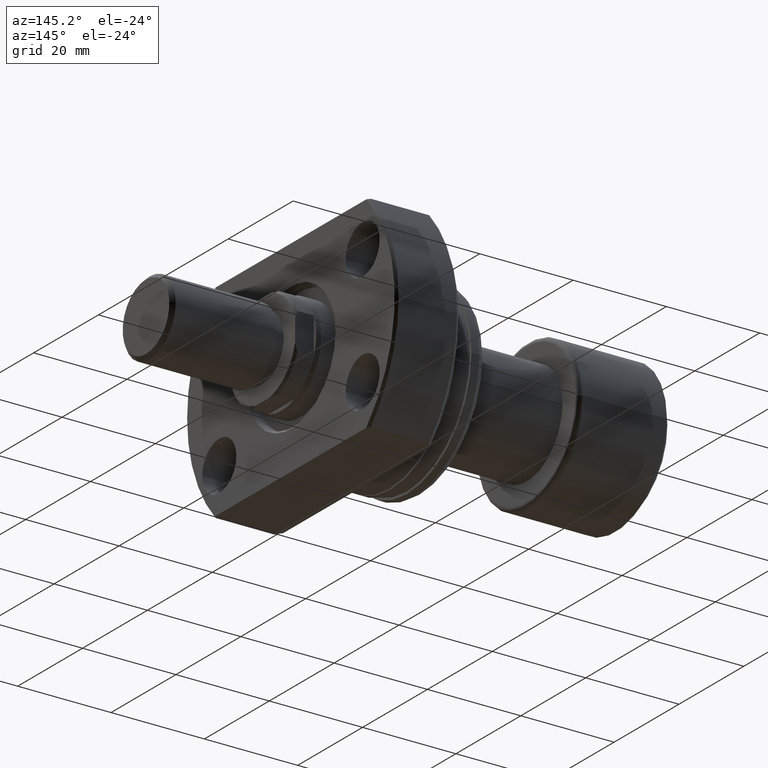
[diagram: clean part render]
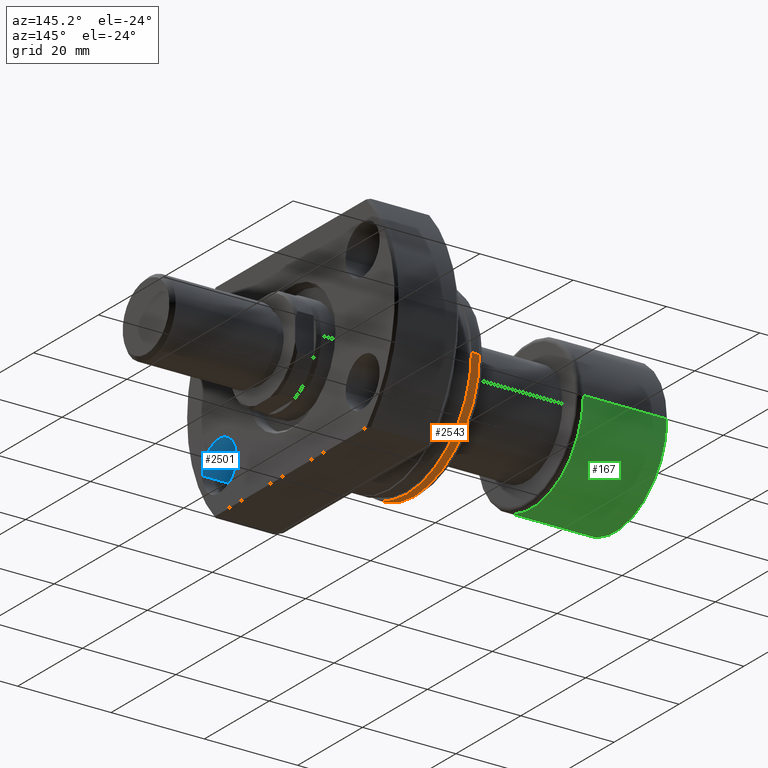
[diagram: same view with three faces highlighted in distinct colors, each labeled with its STEP entity id]
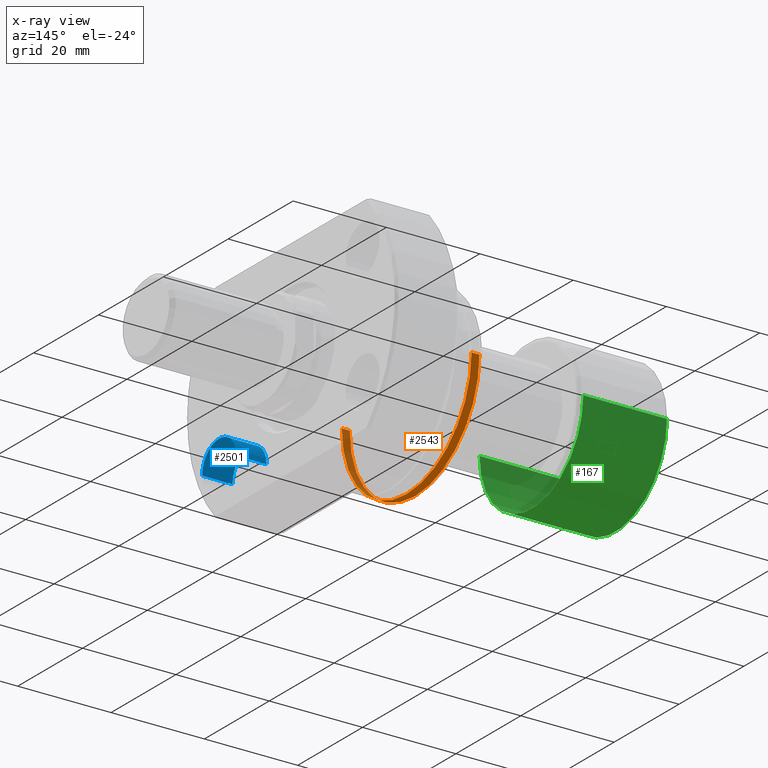
[diagram: x-ray of the same camera — body ghosted, the three highlighted faces saturated]
A machine part, auxiliary view with three faces highlighted in distinct colors.
The next image is the same camera in x-ray (body ghosted, the three faces saturated) — at least one of them is partly hidden behind the body in this view.
Their STEP definitions:

[orange] entity #2543 — the highlighted cylindrical surface (partial cylindrical patch) has radius 20 mm, axis along (1, 0, 0).
#47 = ORIENTED_EDGE ( 'NONE', *, *, #2010, .T. ) ;
#90 = AXIS2_PLACEMENT_3D ( 'NONE', #224, #1372, #2504 ) ;
#217 = CARTESIAN_POINT ( 'NONE',  ( 2.699999999999786127, -19.99999999999999645, 2.449293598294706119E-15 ) ) ;
#224 = CARTESIAN_POINT ( 'NONE',  ( 0.9999999999997857270, 1.335978326342282389E-17, 0.000000000000000000 ) ) ;
#351 = DIRECTION ( 'NONE',  ( 1.000000000000000000, 1.335978326342566810E-17, -0.000000000000000000 ) ) ;
#393 = ORIENTED_EDGE ( 'NONE', *, *, #3477, .F. ) ;
#513 = CARTESIAN_POINT ( 'NONE',  ( 2.699999999999785683, 19.99999999999999645, 0.000000000000000000 ) ) ;
#583 = AXIS2_PLACEMENT_3D ( 'NONE', #2971, #2118, #2085 ) ;
#695 = CYLINDRICAL_SURFACE ( 'NONE', #2287, 19.99999999999999645 ) ;
#739 = CIRCLE ( 'NONE', #90, 19.99999999999999645 ) ;
#795 = VECTOR ( 'NONE', #351, 1000.000000000000000 ) ;
#809 = CIRCLE ( 'NONE', #583, 19.99999999999999645 ) ;
#831 = VERTEX_POINT ( 'NONE', #1108 ) ;
#940 = CARTESIAN_POINT ( 'NONE',  ( 27.50000000000000355, -19.99999999999999645, 2.449293598294706119E-15 ) ) ;
#1108 = CARTESIAN_POINT ( 'NONE',  ( 0.9999999999997856159, 19.99999999999999645, 0.000000000000000000 ) ) ;
#1125 = ORIENTED_EDGE ( 'NONE', *, *, #1838, .T. ) ;
#1372 = DIRECTION ( 'NONE',  ( 1.000000000000000000, 1.335978326342566810E-17, -0.000000000000000000 ) ) ;
#1453 = VERTEX_POINT ( 'NONE', #217 ) ;
#1475 = CARTESIAN_POINT ( 'NONE',  ( 27.50000000000000355, 19.99999999999999645, 0.000000000000000000 ) ) ;
#1838 = EDGE_CURVE ( 'NONE', #2964, #831, #739, .T. ) ;
#2010 = EDGE_CURVE ( 'NONE', #831, #2734, #2322, .T. ) ;
#2085 = DIRECTION ( 'NONE',  ( -2.168404344971009176E-17, 1.000000000000000000, 0.000000000000000000 ) ) ;
#2118 = DIRECTION ( 'NONE',  ( 1.000000000000000000, 1.335978326342566810E-17, -0.000000000000000000 ) ) ;
#2182 = EDGE_LOOP ( 'NONE', ( #2957, #1125, #47, #393 ) ) ;
#2287 = AXIS2_PLACEMENT_3D ( 'NONE', #3555, #2414, #3210 ) ;
#2322 = LINE ( 'NONE', #1475, #795 ) ;
#2408 = CARTESIAN_POINT ( 'NONE',  ( 0.9999999999997859490, -19.99999999999999645, 2.449293598294706119E-15 ) ) ;
#2414 = DIRECTION ( 'NONE',  ( 1.000000000000000000, 1.335978326342566810E-17, -0.000000000000000000 ) ) ;
#2430 = LINE ( 'NONE', #940, #2954 ) ;
#2504 = DIRECTION ( 'NONE',  ( -1.084202172485504588E-17, 1.000000000000000000, 0.000000000000000000 ) ) ;
#2523 = EDGE_CURVE ( 'NONE', #2964, #1453, #2430, .T. ) ;
#2543 = ADVANCED_FACE ( 'NONE', ( #3491 ), #695, .T. ) ;
#2734 = VERTEX_POINT ( 'NONE', #513 ) ;
#2954 = VECTOR ( 'NONE', #3238, 1000.000000000000000 ) ;
#2957 = ORIENTED_EDGE ( 'NONE', *, *, #2523, .F. ) ;
#2964 = VERTEX_POINT ( 'NONE', #2408 ) ;
#2971 = CARTESIAN_POINT ( 'NONE',  ( 2.699999999999786127, 3.607141481124643254E-17, 0.000000000000000000 ) ) ;
#3210 = DIRECTION ( 'NONE',  ( 0.000000000000000000, 1.000000000000000000, 0.000000000000000000 ) ) ;
#3238 = DIRECTION ( 'NONE',  ( 1.000000000000000000, 1.335978326342566810E-17, -0.000000000000000000 ) ) ;
#3477 = EDGE_CURVE ( 'NONE', #1453, #2734, #809, .T. ) ;
#3491 = FACE_OUTER_BOUND ( 'NONE', #2182, .T. ) ;
#3555 = CARTESIAN_POINT ( 'NONE',  ( 27.50000000000000355, 3.673940397442059375E-16, 0.000000000000000000 ) ) ;

[blue] entity #2501 — the highlighted cylindrical surface (edge-blend (fillet) strip) has radius 5.25 mm, axis along (1, -0, 0).
#123 = EDGE_LOOP ( 'NONE', ( #1545, #1884, #2570, #1859 ) ) ;
#131 = CYLINDRICAL_SURFACE ( 'NONE', #2160, 5.250000000000000888 ) ;
#284 = DIRECTION ( 'NONE',  ( 1.000000000000000000, -2.886466111666352516E-14, -0.000000000000000000 ) ) ;
#317 = VERTEX_POINT ( 'NONE', #2265 ) ;
#374 = DIRECTION ( 'NONE',  ( 1.000000000000000000, -2.886466111666352516E-14, -0.000000000000000000 ) ) ;
#375 = AXIS2_PLACEMENT_3D ( 'NONE', #1571, #716, #1257 ) ;
#501 = CARTESIAN_POINT ( 'NONE',  ( 20.99999999999952038, -16.85000000000060538, -12.75000000000000178 ) ) ;
#522 = CARTESIAN_POINT ( 'NONE',  ( 27.49999999999951683, -16.85000000000079012, -12.75000000000000178 ) ) ;
#716 = DIRECTION ( 'NONE',  ( 1.000000000000000000, -2.887798767815668620E-14, -6.310887241768094443E-30 ) ) ;
#931 = EDGE_CURVE ( 'NONE', #3265, #317, #1975, .T. ) ;
#1216 = VERTEX_POINT ( 'NONE', #3397 ) ;
#1257 = DIRECTION ( 'NONE',  ( 2.907726969256361977E-14, 1.000000000000000000, 0.000000000000000000 ) ) ;
#1267 = CARTESIAN_POINT ( 'NONE',  ( 20.99999999999936762, -22.10000000000060538, -12.75000000000000178 ) ) ;
#1366 = DIRECTION ( 'NONE',  ( 2.907726969256361977E-14, 1.000000000000000000, 0.000000000000000000 ) ) ;
#1417 = EDGE_CURVE ( 'NONE', #1216, #1519, #2940, .T. ) ;
#1440 = CARTESIAN_POINT ( 'NONE',  ( 20.99999999999936762, -22.10000000000060538, -12.75000000000000178 ) ) ;
#1519 = VERTEX_POINT ( 'NONE', #2341 ) ;
#1545 = ORIENTED_EDGE ( 'NONE', *, *, #1995, .F. ) ;
#1567 = AXIS2_PLACEMENT_3D ( 'NONE', #1440, #2225, #1366 ) ;
#1571 = CARTESIAN_POINT ( 'NONE',  ( 27.49999999999936406, -22.10000000000079368, -12.75000000000000178 ) ) ;
#1778 = FACE_OUTER_BOUND ( 'NONE', #123, .T. ) ;
#1859 = ORIENTED_EDGE ( 'NONE', *, *, #931, .T. ) ;
#1884 = ORIENTED_EDGE ( 'NONE', *, *, #1417, .F. ) ;
#1905 = LINE ( 'NONE', #501, #3358 ) ;
#1975 = CIRCLE ( 'NONE', #375, 5.250000000000000888 ) ;
#1995 = EDGE_CURVE ( 'NONE', #1519, #317, #3370, .T. ) ;
#2095 = DIRECTION ( 'NONE',  ( 1.000000000000000000, -2.886466111666352516E-14, -0.000000000000000000 ) ) ;
#2160 = AXIS2_PLACEMENT_3D ( 'NONE', #1267, #374, #2698 ) ;
#2223 = VECTOR ( 'NONE', #284, 1000.000000000000000 ) ;
#2225 = DIRECTION ( 'NONE',  ( 1.000000000000000000, -2.887798767815668620E-14, -6.310887241768094443E-30 ) ) ;
#2265 = CARTESIAN_POINT ( 'NONE',  ( 27.49999999999921130, -27.35000000000079368, -12.75000000000000178 ) ) ;
#2341 = CARTESIAN_POINT ( 'NONE',  ( 20.99999999999921485, -27.35000000000060538, -12.75000000000000178 ) ) ;
#2434 = EDGE_CURVE ( 'NONE', #1216, #3265, #1905, .T. ) ;
#2501 = ADVANCED_FACE ( 'NONE', ( #1778 ), #131, .F. ) ;
#2570 = ORIENTED_EDGE ( 'NONE', *, *, #2434, .T. ) ;
#2698 = DIRECTION ( 'NONE',  ( 2.907726969256361977E-14, 1.000000000000000000, 0.000000000000000000 ) ) ;
#2836 = CARTESIAN_POINT ( 'NONE',  ( 20.99999999999921485, -27.35000000000060538, -12.75000000000000178 ) ) ;
#2940 = CIRCLE ( 'NONE', #1567, 5.250000000000000888 ) ;
#3265 = VERTEX_POINT ( 'NONE', #522 ) ;
#3358 = VECTOR ( 'NONE', #2095, 1000.000000000000000 ) ;
#3370 = LINE ( 'NONE', #2836, #2223 ) ;
#3397 = CARTESIAN_POINT ( 'NONE',  ( 20.99999999999952038, -16.85000000000060538, -12.75000000000000178 ) ) ;

[green] entity #167 — the highlighted cylindrical surface (partial cylindrical patch) has radius 16 mm, axis along (-1, -0, -0).
#103 = LINE ( 'NONE', #2379, #3144 ) ;
#167 = ADVANCED_FACE ( 'NONE', ( #172 ), #1315, .T. ) ;
#172 = FACE_OUTER_BOUND ( 'NONE', #458, .T. ) ;
#184 = DIRECTION ( 'NONE',  ( -1.000000000000000000, -1.069542322069065801E-17, -0.000000000000000000 ) ) ;
#187 = CARTESIAN_POINT ( 'NONE',  ( 0.000000000000000000, 0.000000000000000000, 0.000000000000000000 ) ) ;
#188 = VERTEX_POINT ( 'NONE', #1165 ) ;
#197 = CIRCLE ( 'NONE', #1576, 16.00000000000000000 ) ;
#205 = DIRECTION ( 'NONE',  ( 1.355252715606880543E-17, -1.000000000000000000, 0.000000000000000000 ) ) ;
#427 = LINE ( 'NONE', #2667, #3240 ) ;
#458 = EDGE_LOOP ( 'NONE', ( #3168, #1197, #2531, #1377 ) ) ;
#1017 = CARTESIAN_POINT ( 'NONE',  ( 1.500000000000001776, 16.00000000000000000, 0.000000000000000000 ) ) ;
#1165 = CARTESIAN_POINT ( 'NONE',  ( 19.40000000000000213, -16.00000000000000000, 0.000000000000000000 ) ) ;
#1197 = ORIENTED_EDGE ( 'NONE', *, *, #2368, .T. ) ;
#1315 = CYLINDRICAL_SURFACE ( 'NONE', #3057, 16.00000000000000000 ) ;
#1334 = DIRECTION ( 'NONE',  ( -1.000000000000000000, -1.069542322069065801E-17, -0.000000000000000000 ) ) ;
#1376 = CARTESIAN_POINT ( 'NONE',  ( 1.500000000000002220, -16.00000000000000000, 1.959434878635765526E-15 ) ) ;
#1377 = ORIENTED_EDGE ( 'NONE', *, *, #2311, .F. ) ;
#1528 = CIRCLE ( 'NONE', #1811, 16.00000000000000000 ) ;
#1576 = AXIS2_PLACEMENT_3D ( 'NONE', #3044, #184, #205 ) ;
#1765 = VERTEX_POINT ( 'NONE', #1017 ) ;
#1811 = AXIS2_PLACEMENT_3D ( 'NONE', #2781, #2448, #1889 ) ;
#1833 = DIRECTION ( 'NONE',  ( -1.000000000000000000, -1.069542322069065801E-17, -0.000000000000000000 ) ) ;
#1889 = DIRECTION ( 'NONE',  ( 0.000000000000000000, -1.000000000000000000, 0.000000000000000000 ) ) ;
#2311 = EDGE_CURVE ( 'NONE', #1765, #2335, #197, .T. ) ;
#2333 = DIRECTION ( 'NONE',  ( -1.000000000000000000, -1.069542322069065801E-17, -0.000000000000000000 ) ) ;
#2335 = VERTEX_POINT ( 'NONE', #1376 ) ;
#2368 = EDGE_CURVE ( 'NONE', #2513, #188, #1528, .T. ) ;
#2379 = CARTESIAN_POINT ( 'NONE',  ( 1.711267715310505281E-16, -16.00000000000000000, 0.000000000000000000 ) ) ;
#2448 = DIRECTION ( 'NONE',  ( -1.000000000000000000, -1.069542322069065801E-17, -0.000000000000000000 ) ) ;
#2513 = VERTEX_POINT ( 'NONE', #2980 ) ;
#2531 = ORIENTED_EDGE ( 'NONE', *, *, #3380, .T. ) ;
#2667 = CARTESIAN_POINT ( 'NONE',  ( -1.711267715310505281E-16, 16.00000000000000000, 1.959434878635765131E-15 ) ) ;
#2781 = CARTESIAN_POINT ( 'NONE',  ( 19.40000000000000213, 2.074912104813987675E-16, 0.000000000000000000 ) ) ;
#2980 = CARTESIAN_POINT ( 'NONE',  ( 19.40000000000000213, 16.00000000000000000, 1.959434878635765131E-15 ) ) ;
#3044 = CARTESIAN_POINT ( 'NONE',  ( 1.500000000000001998, 1.604313483103600935E-17, 0.000000000000000000 ) ) ;
#3057 = AXIS2_PLACEMENT_3D ( 'NONE', #187, #1334, #3676 ) ;
#3072 = EDGE_CURVE ( 'NONE', #2513, #1765, #427, .T. ) ;
#3144 = VECTOR ( 'NONE', #2333, 1000.000000000000000 ) ;
#3168 = ORIENTED_EDGE ( 'NONE', *, *, #3072, .F. ) ;
#3240 = VECTOR ( 'NONE', #1833, 1000.000000000000000 ) ;
#3380 = EDGE_CURVE ( 'NONE', #188, #2335, #103, .T. ) ;
#3676 = DIRECTION ( 'NONE',  ( 1.069542322069065801E-17, -1.000000000000000000, 0.000000000000000000 ) ) ;